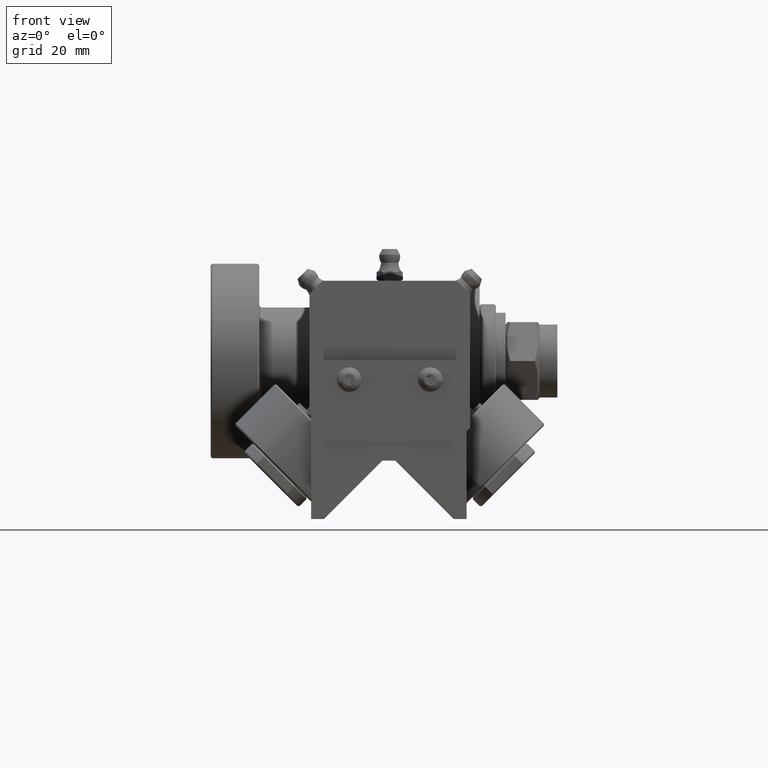
[diagram: clean part render]
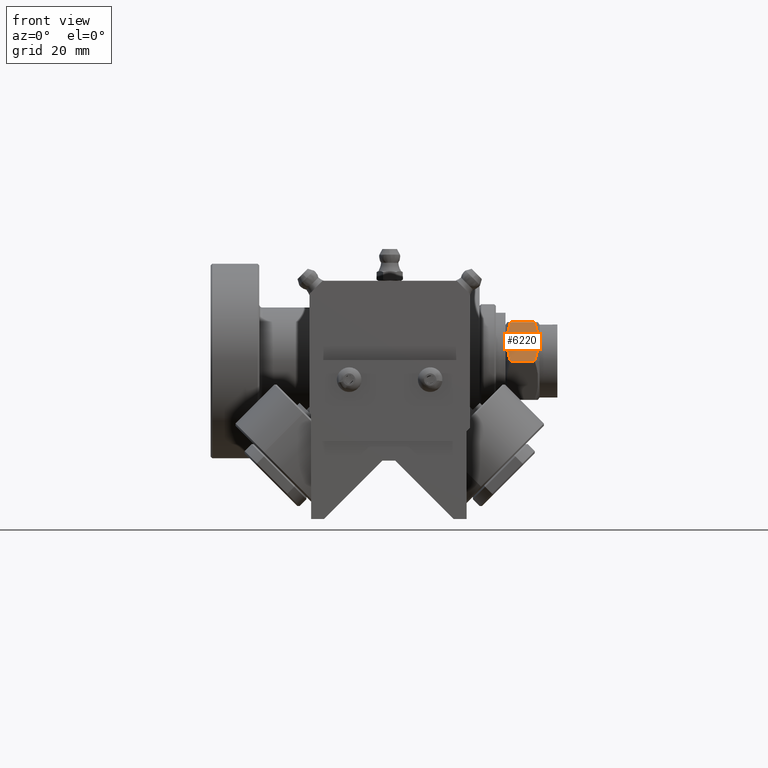
[diagram: same view with one face highlighted and labeled with its STEP entity id]
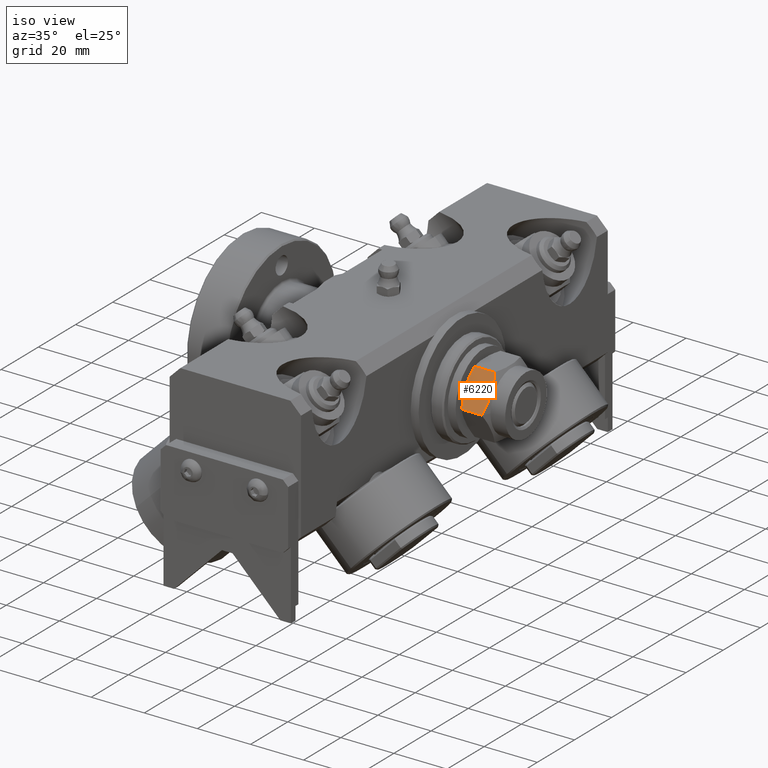
[diagram: same view with one face highlighted and labeled with its STEP entity id]
A machine part, front view. The second image highlights one B-rep face of the part: STEP entity #6220.
A second angle (iso view) of the same face is appended — the face is thin or edge-on in the first view.
In plain terms, the highlighted planar face has unit normal (0, -0.866, 0.5).
Its self-contained STEP definition (entity closure, byte-faithful):
#157=(
BOUNDED_CURVE()
B_SPLINE_CURVE(2,(#12636,#12637,#12638),.UNSPECIFIED.,.F.,.F.)
B_SPLINE_CURVE_WITH_KNOTS((3,3),(0.,1.4021233656935),.UNSPECIFIED.)
CURVE()
GEOMETRIC_REPRESENTATION_ITEM()
RATIONAL_B_SPLINE_CURVE((1.,1.15470053837925,1.))
REPRESENTATION_ITEM('')
);
#159=(
BOUNDED_CURVE()
B_SPLINE_CURVE(2,(#12648,#12649,#12650),.UNSPECIFIED.,.F.,.F.)
B_SPLINE_CURVE_WITH_KNOTS((3,3),(0.,1.4021233656935),.UNSPECIFIED.)
CURVE()
GEOMETRIC_REPRESENTATION_ITEM()
RATIONAL_B_SPLINE_CURVE((1.,1.15470053837925,1.))
REPRESENTATION_ITEM('')
);
#589=PLANE('',#7308);
#898=FACE_OUTER_BOUND('',#1318,.T.);
#1318=EDGE_LOOP('',(#5402,#5403,#5404,#5405));
#2090=LINE('',#12674,#2440);
#2092=LINE('',#12678,#2442);
#2440=VECTOR('',#8843,10.);
#2442=VECTOR('',#8849,10.);
#3022=VERTEX_POINT('',#12614);
#3027=VERTEX_POINT('',#12632);
#3028=VERTEX_POINT('',#12641);
#3030=VERTEX_POINT('',#12647);
#3835=EDGE_CURVE('',#3022,#3027,#157,.T.);
#3839=EDGE_CURVE('',#3030,#3028,#159,.T.);
#3848=EDGE_CURVE('',#3028,#3022,#2090,.T.);
#3850=EDGE_CURVE('',#3030,#3027,#2092,.T.);
#5402=ORIENTED_EDGE('',*,*,#3835,.T.);
#5403=ORIENTED_EDGE('',*,*,#3850,.F.);
#5404=ORIENTED_EDGE('',*,*,#3839,.T.);
#5405=ORIENTED_EDGE('',*,*,#3848,.T.);
#6220=ADVANCED_FACE('',(#898),#589,.T.);
#7308=AXIS2_PLACEMENT_3D('',#12677,#8847,#8848);
#8843=DIRECTION('',(1.,0.,0.));
#8847=DIRECTION('center_axis',(0.,-0.866025403784439,0.5));
#8848=DIRECTION('ref_axis',(0.,-0.499999999999999,-0.866025403784439));
#8849=DIRECTION('',(1.,0.,0.));
#12614=CARTESIAN_POINT('',(8.99519052838329,-13.856406460551,-1.55431223447522E-14));
#12632=CARTESIAN_POINT('',(8.99519052838329,-6.92820323027552,12.));
#12636=CARTESIAN_POINT('Ctrl Pts',(8.99519052838329,-13.856406460551,-9.80384127230027E-15));
#12637=CARTESIAN_POINT('Ctrl Pts',(10.9951905283833,-10.3923048454133,5.99999999999999));
#12638=CARTESIAN_POINT('Ctrl Pts',(8.99519052838329,-6.92820323027552,12.));
#12641=CARTESIAN_POINT('',(1.50480947161671,-13.856406460551,-1.55431223447522E-14));
#12647=CARTESIAN_POINT('',(1.50480947161671,-6.92820323027552,12.));
#12648=CARTESIAN_POINT('Ctrl Pts',(1.50480947161671,-6.92820323027551,12.));
#12649=CARTESIAN_POINT('Ctrl Pts',(-0.49519052838329,-10.3923048454133,
6.));
#12650=CARTESIAN_POINT('Ctrl Pts',(1.50480947161671,-13.856406460551,-9.80384127230027E-15));
#12674=CARTESIAN_POINT('',(0.,-13.856406460551,-1.29620126517939E-14));
#12677=CARTESIAN_POINT('Origin',(0.,-13.856406460551,-1.29620126517939E-14));
#12678=CARTESIAN_POINT('',(0.,-6.92820323027552,12.));